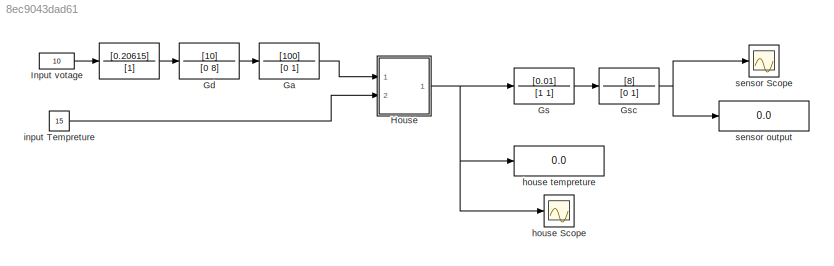
MODEL slx_8ec9043dad61
KIND model
CONFIG AbsTol = auto
CONFIG EnableMultiTasking = off
CONFIG FixedStep = auto
CONFIG MaxStep = auto
CONFIG MinStep = auto
CONFIG RelTol = 1e-3
CONFIG SampleTimeConstraint = Unconstrained
CONFIG Solver = VariableStepAuto
CONFIG SolverName = VariableStepAuto
CONFIG StartTime = 0.0
CONFIG StopTime = 15
BLOCK [TransferFcn]  
  Denominator = [1]
  Numerator = [0.20615]
BLOCK [TransferFcn] Ga 
  Denominator = [0 1]
  Numerator = [100]
BLOCK [TransferFcn] Gd
  Denominator = [0 8]
  Numerator = [10]
BLOCK [TransferFcn] Gs 
  Denominator = [1 1]
  Numerator = [0.01]
BLOCK [TransferFcn] Gsc 
  Denominator = [0 1]
  Numerator = [8]
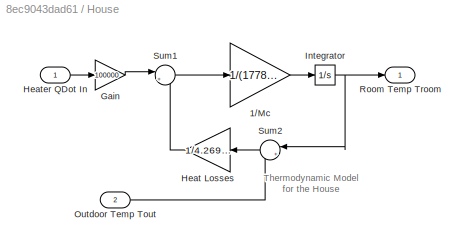
BLOCK [SubSystem] House
  Ports = [2, 1]
  RequestExecContextInheritance = off
  Variant = off
BLOCK [Gain] House/1//Mc
  Gain = 1/(1778.369114457651*1005.4)
BLOCK [Gain] House/Gain
  Gain = 100000
  OutDataTypeStr = Inherit: Inherit via internal rule
  ParamDataTypeStr = Inherit: Inherit via internal rule
  SaturateOnIntegerOverflow = off
BLOCK [Gain] House/Heat Losses
  Gain = 1/4.269756377514351e-07
BLOCK [Inport] House/Heater QDot In
  IconDisplay = Port number
BLOCK [Integrator] House/Integrator
  InitialCondition = 20
  Ports = [1, 1]
BLOCK [Inport] House/Outdoor Temp Tout
  IconDisplay = Port number
  Port = 2
BLOCK [Outport] House/Room Temp Troom
  IconDisplay = Port number
  InitialOutput = 0
BLOCK [Sum] House/Sum1
  IconShape = round
  Inputs = |+-
  Ports = [2, 1]
BLOCK [Sum] House/Sum2
  IconShape = round
  Inputs = |+-
  Ports = [2, 1]
BLOCK [Constant] Input votage 
  Value = 10
  VectorParams1D = off
BLOCK [Scope] house Scope
  NumInputPorts = 1
  Ports = [1]
  ScopeSpecificationString = Simulink.scopes.TimeScopeBlockCfg('CurrentConfiguration', extmgr.ConfigurationSet(extmgr.Configuration('Core','General UI',true),extmgr.Configuration('Core','Source UI',true),extmgr.Configuration('Sources','WiredSimulink',true,'DataLoggingVariableName','ScopeData1'),extmgr.Configuration('Visuals','Time Domain',true,'SerializedDisplays',{struct('MinYLimReal','15.50296','MaxYLimReal','20.49967','YLa...<+1443ch>
BLOCK [Display] house tempreture
  Decimation = 1
  Ports = [1]
BLOCK [Constant] input Tempreture
  Value = 15
BLOCK [Scope] sensor Scope
  NumInputPorts = 1
  Ports = [1]
  ScopeSpecificationString = Simulink.scopes.TimeScopeBlockCfg('CurrentConfiguration', extmgr.ConfigurationSet(extmgr.Configuration('Core','General UI',true),extmgr.Configuration('Core','Source UI',true),extmgr.Configuration('Sources','WiredSimulink',true),extmgr.Configuration('Visuals','Time Domain',true,'SerializedDisplays',{struct('MinYLimReal','-0.26','MaxYLimReal','2.34','YLabelReal','','MinYLimMag','0.00000','MaxYLimMag...<+1384ch>
BLOCK [Display] sensor output
  Decimation = 1
  Ports = [1]
ANNOTATION House: Thermodynamic Model for the House
LINE  :1 -> Gd:1
LINE Ga :1 -> House:1
LINE Gd:1 -> Ga :1
LINE Gs :1 -> Gsc :1
NET Gsc :1 -> sensor Scope:1, sensor output:1
LINE House/1//Mc:1 -> House/Integrator:1
LINE House/Gain:1 -> House/Sum1:1
LINE House/Heat Losses:1 -> House/Sum1:2
LINE House/Heater QDot In:1 -> House/Gain:1
NET House/Integrator:1 -> House/Room Temp Troom:1, House/Sum2:1
LINE House/Outdoor Temp Tout:1 -> House/Sum2:2
LINE House/Sum1:1 -> House/1//Mc:1
LINE House/Sum2:1 -> House/Heat Losses:1
NET House:1 -> Gs :1, house Scope:1, house tempreture:1
LINE Input votage :1 ->  :1
LINE input Tempreture:1 -> House:2
note: NET lines group one-source signal fan-out (src -> all destinations, sorted); 1:1 wires keep LINE
